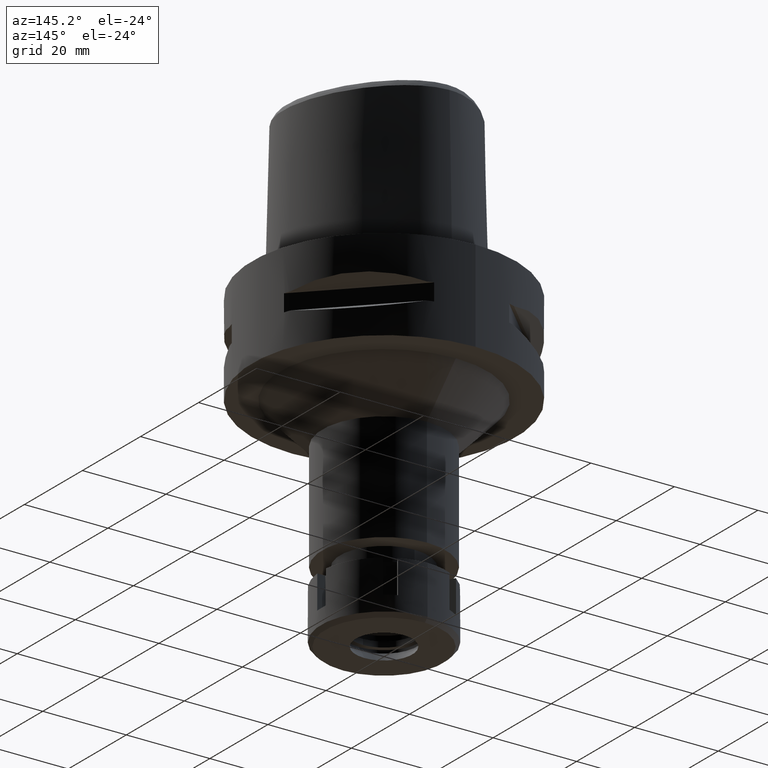
[diagram: clean part render]
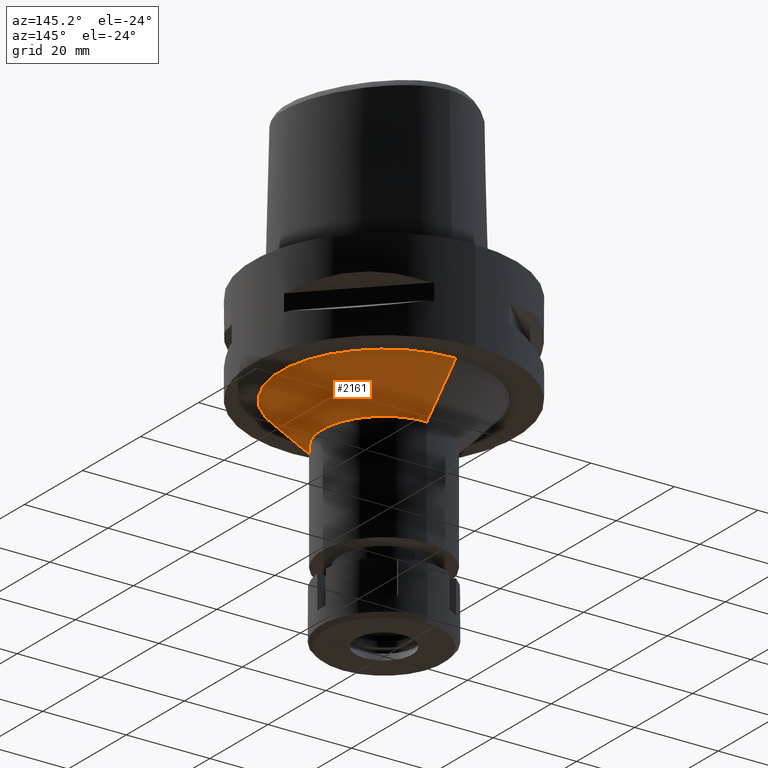
[diagram: same view with one face highlighted and labeled with its STEP entity id]
A machine part, auxiliary view. The second image highlights one B-rep face of the part: STEP entity #2161.
In plain terms, the highlighted conical surface has half-angle 45 deg.
Its self-contained STEP definition (entity closure, byte-faithful):
#15 = EDGE_CURVE ( 'NONE', #4618, #3463, #5304, .T. ) ;
#269 = VERTEX_POINT ( 'NONE', #1586 ) ;
#294 = DIRECTION ( 'NONE',  ( 0.0000000000000000000, 1.000000000000000000, 0.0000000000000000000 ) ) ;
#466 = ORIENTED_EDGE ( 'NONE', *, *, #3085, .F. ) ;
#1066 = AXIS2_PLACEMENT_3D ( 'NONE', #5398, #1625, #4991 ) ;
#1102 = DIRECTION ( 'NONE',  ( 0.0000000000000000000, -0.7071067811865474617, -0.7071067811865474617 ) ) ;
#1241 = FACE_OUTER_BOUND ( 'NONE', #4573, .T. ) ;
#1312 = VECTOR ( 'NONE', #4127, 1000.000000000000114 ) ;
#1458 = DIRECTION ( 'NONE',  ( 0.0000000000000000000, 1.000000000000000000, 0.0000000000000000000 ) ) ;
#1586 = CARTESIAN_POINT ( 'NONE',  ( 0.0000000000000000000, -24.75000000000000000, -22.00000000000000000 ) ) ;
#1625 = DIRECTION ( 'NONE',  ( 0.0000000000000000000, 0.0000000000000000000, 1.000000000000000000 ) ) ;
#1768 = VERTEX_POINT ( 'NONE', #4078 ) ;
#1885 = CARTESIAN_POINT ( 'NONE',  ( 0.0000000000000000000, 24.75000000000000000, -22.00000000000000000 ) ) ;
#1979 = EDGE_CURVE ( 'NONE', #269, #1768, #4152, .T. ) ;
#2047 = CARTESIAN_POINT ( 'NONE',  ( 0.0000000000000000000, 0.0000000000000000000, -32.00000000000000000 ) ) ;
#2161 = ADVANCED_FACE ( 'NONE', ( #1241 ), #3701, .T. ) ;
#2269 = VECTOR ( 'NONE', #1102, 1000.000000000000114 ) ;
#2511 = AXIS2_PLACEMENT_3D ( 'NONE', #2047, #4082, #294 ) ;
#2609 = CIRCLE ( 'NONE', #4813, 24.75000000000000000 ) ;
#2927 = CARTESIAN_POINT ( 'NONE',  ( 0.0000000000000000000, 24.75000000000000000, -22.00000000000000000 ) ) ;
#3085 = EDGE_CURVE ( 'NONE', #3463, #1768, #4899, .T. ) ;
#3457 = ORIENTED_EDGE ( 'NONE', *, *, #4177, .T. ) ;
#3463 = VERTEX_POINT ( 'NONE', #4753 ) ;
#3583 = DIRECTION ( 'NONE',  ( 0.0000000000000000000, 0.0000000000000000000, -1.000000000000000000 ) ) ;
#3691 = ORIENTED_EDGE ( 'NONE', *, *, #15, .F. ) ;
#3701 = CONICAL_SURFACE ( 'NONE', #1066, 19.75000000000000000, 0.7853981633972997312 ) ;
#4078 = CARTESIAN_POINT ( 'NONE',  ( 0.0000000000000000000, -14.75000000000000000, -32.00000000000000000 ) ) ;
#4082 = DIRECTION ( 'NONE',  ( 0.0000000000000000000, 0.0000000000000000000, -1.000000000000000000 ) ) ;
#4127 = DIRECTION ( 'NONE',  ( 0.0000000000000000000, 0.7071067811865474617, -0.7071067811865474617 ) ) ;
#4152 = LINE ( 'NONE', #4205, #1312 ) ;
#4177 = EDGE_CURVE ( 'NONE', #4618, #269, #2609, .T. ) ;
#4205 = CARTESIAN_POINT ( 'NONE',  ( 0.0000000000000000000, -24.75000000000000000, -22.00000000000000000 ) ) ;
#4573 = EDGE_LOOP ( 'NONE', ( #3457, #4633, #466, #3691 ) ) ;
#4618 = VERTEX_POINT ( 'NONE', #2927 ) ;
#4633 = ORIENTED_EDGE ( 'NONE', *, *, #1979, .T. ) ;
#4753 = CARTESIAN_POINT ( 'NONE',  ( 0.0000000000000000000, 14.75000000000000000, -32.00000000000000000 ) ) ;
#4813 = AXIS2_PLACEMENT_3D ( 'NONE', #5230, #3583, #1458 ) ;
#4899 = CIRCLE ( 'NONE', #2511, 14.75000000000000000 ) ;
#4991 = DIRECTION ( 'NONE',  ( 0.0000000000000000000, 1.000000000000000000, 0.0000000000000000000 ) ) ;
#5230 = CARTESIAN_POINT ( 'NONE',  ( 0.0000000000000000000, 0.0000000000000000000, -22.00000000000000000 ) ) ;
#5304 = LINE ( 'NONE', #1885, #2269 ) ;
#5398 = CARTESIAN_POINT ( 'NONE',  ( 0.0000000000000000000, 0.0000000000000000000, -27.00000000000000000 ) ) ;